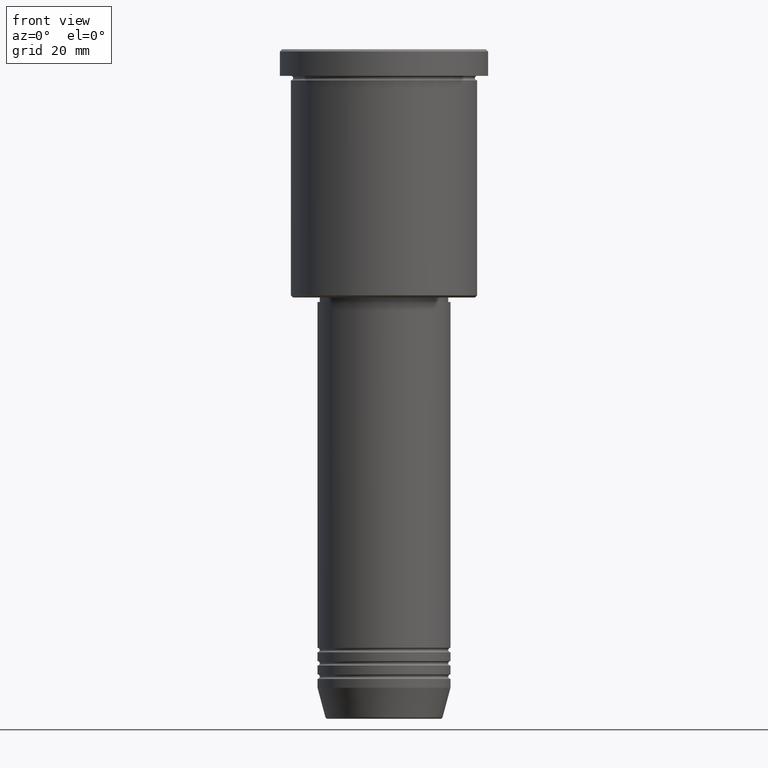
[diagram: clean part render]
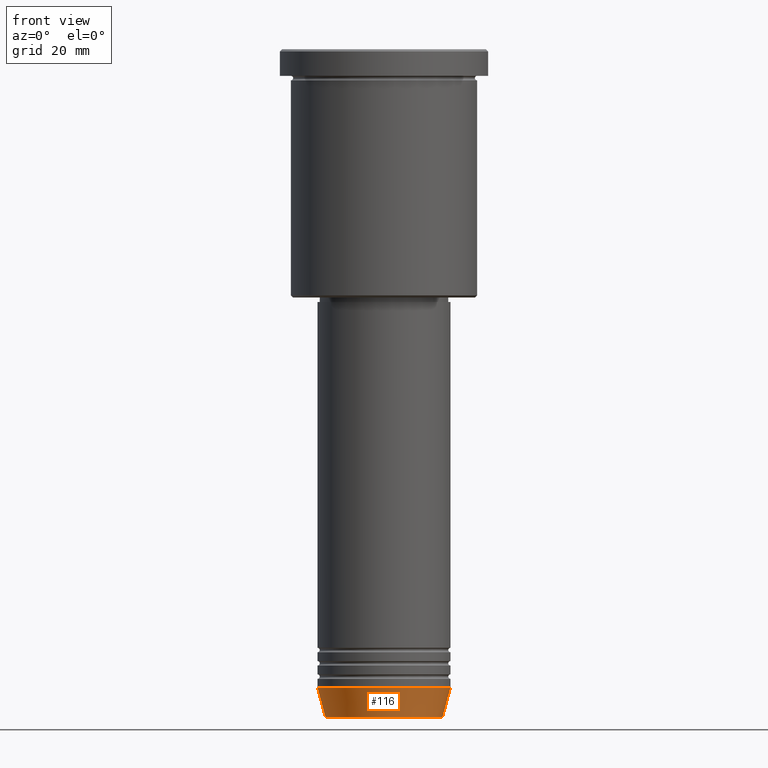
[diagram: same view with one face highlighted and labeled with its STEP entity id]
A machine part, front view. The second image highlights one B-rep face of the part: STEP entity #116.
In plain terms, the highlighted conical surface has half-angle 15 deg.
Its self-contained STEP definition (entity closure, byte-faithful):
#5 = DIRECTION ( 'NONE',  ( 0.2588190451025209060, 0.000000000000000000, 0.9659258262890682012 ) ) ;
#57 = EDGE_CURVE ( 'NONE', #789, #1032, #588, .T. ) ;
#63 = DIRECTION ( 'NONE',  ( -0.000000000000000000, -0.000000000000000000, 1.000000000000000000 ) ) ;
#67 = VERTEX_POINT ( 'NONE', #775 ) ;
#116 = ADVANCED_FACE ( 'NONE', ( #668 ), #187, .T. ) ;
#124 = DIRECTION ( 'NONE',  ( 1.000000000000000000, 0.000000000000000000, 0.000000000000000000 ) ) ;
#128 = LINE ( 'NONE', #874, #614 ) ;
#187 = CONICAL_SURFACE ( 'NONE', #830, 15.00000000000000000, 0.2617993877991495744 ) ;
#207 = DIRECTION ( 'NONE',  ( -0.000000000000000000, -0.000000000000000000, 1.000000000000000000 ) ) ;
#222 = EDGE_LOOP ( 'NONE', ( #632, #1092, #1167, #853 ) ) ;
#239 = DIRECTION ( 'NONE',  ( -0.2588190451025209060, 3.169619151431766790E-17, 0.9659258262890682012 ) ) ;
#256 = EDGE_CURVE ( 'NONE', #67, #313, #499, .T. ) ;
#264 = CARTESIAN_POINT ( 'NONE',  ( 15.00000000000000000, 0.000000000000000000, -144.0000000000000284 ) ) ;
#275 = EDGE_CURVE ( 'NONE', #789, #67, #128, .T. ) ;
#313 = VERTEX_POINT ( 'NONE', #1082 ) ;
#499 = CIRCLE ( 'NONE', #1151, 15.00000000000000000 ) ;
#537 = AXIS2_PLACEMENT_3D ( 'NONE', #1122, #565, #124 ) ;
#555 = DIRECTION ( 'NONE',  ( 1.000000000000000000, 0.000000000000000000, 0.000000000000000000 ) ) ;
#565 = DIRECTION ( 'NONE',  ( -0.000000000000000000, -0.000000000000000000, 1.000000000000000000 ) ) ;
#580 = EDGE_CURVE ( 'NONE', #1032, #313, #894, .T. ) ;
#588 = CIRCLE ( 'NONE', #537, 13.22365507213719305 ) ;
#614 = VECTOR ( 'NONE', #239, 1000.000000000000000 ) ;
#632 = ORIENTED_EDGE ( 'NONE', *, *, #275, .F. ) ;
#668 = FACE_OUTER_BOUND ( 'NONE', #222, .T. ) ;
#775 = CARTESIAN_POINT ( 'NONE',  ( -15.00000000000000000, 1.836970198721029589E-15, -144.0000000000000284 ) ) ;
#789 = VERTEX_POINT ( 'NONE', #1115 ) ;
#830 = AXIS2_PLACEMENT_3D ( 'NONE', #1035, #207, #555 ) ;
#853 = ORIENTED_EDGE ( 'NONE', *, *, #256, .F. ) ;
#870 = DIRECTION ( 'NONE',  ( 1.000000000000000000, 0.000000000000000000, 0.000000000000000000 ) ) ;
#874 = CARTESIAN_POINT ( 'NONE',  ( -15.00000000000000000, 1.836970198721029589E-15, -144.0000000000000284 ) ) ;
#894 = LINE ( 'NONE', #264, #983 ) ;
#983 = VECTOR ( 'NONE', #5, 1000.000000000000000 ) ;
#1032 = VERTEX_POINT ( 'NONE', #1181 ) ;
#1035 = CARTESIAN_POINT ( 'NONE',  ( 0.000000000000000000, 0.000000000000000000, -144.0000000000000284 ) ) ;
#1069 = CARTESIAN_POINT ( 'NONE',  ( 0.000000000000000000, 0.000000000000000000, -144.0000000000000284 ) ) ;
#1082 = CARTESIAN_POINT ( 'NONE',  ( 15.00000000000000000, 0.000000000000000000, -144.0000000000000284 ) ) ;
#1092 = ORIENTED_EDGE ( 'NONE', *, *, #57, .T. ) ;
#1115 = CARTESIAN_POINT ( 'NONE',  ( -13.22365507213719305, 1.728200442216588780E-15, -150.6294095225512706 ) ) ;
#1122 = CARTESIAN_POINT ( 'NONE',  ( 0.000000000000000000, 0.000000000000000000, -150.6294095225512706 ) ) ;
#1151 = AXIS2_PLACEMENT_3D ( 'NONE', #1069, #63, #870 ) ;
#1167 = ORIENTED_EDGE ( 'NONE', *, *, #580, .T. ) ;
#1181 = CARTESIAN_POINT ( 'NONE',  ( 13.22365507213719305, 0.000000000000000000, -150.6294095225512706 ) ) ;